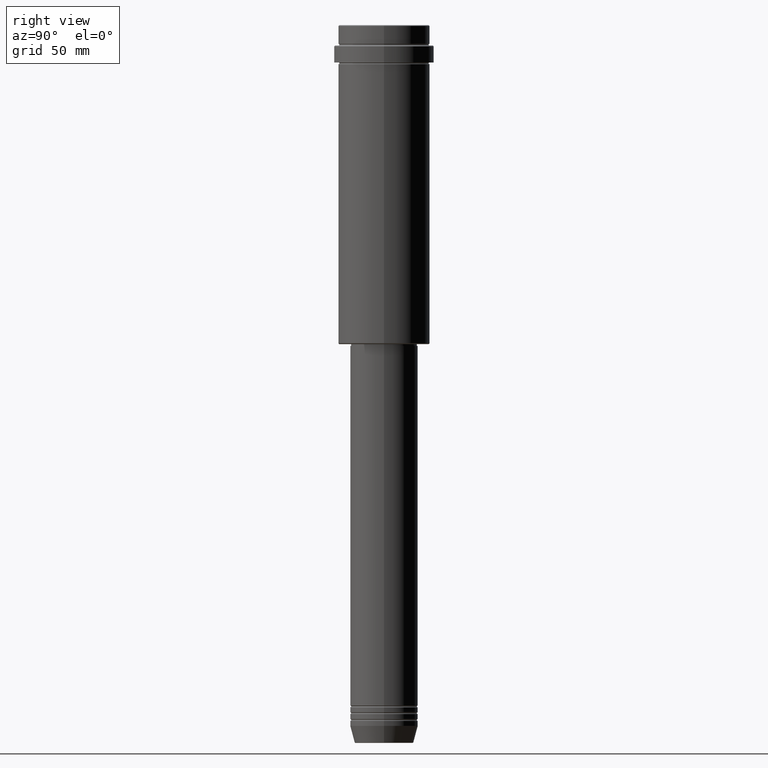
[diagram: clean part render]
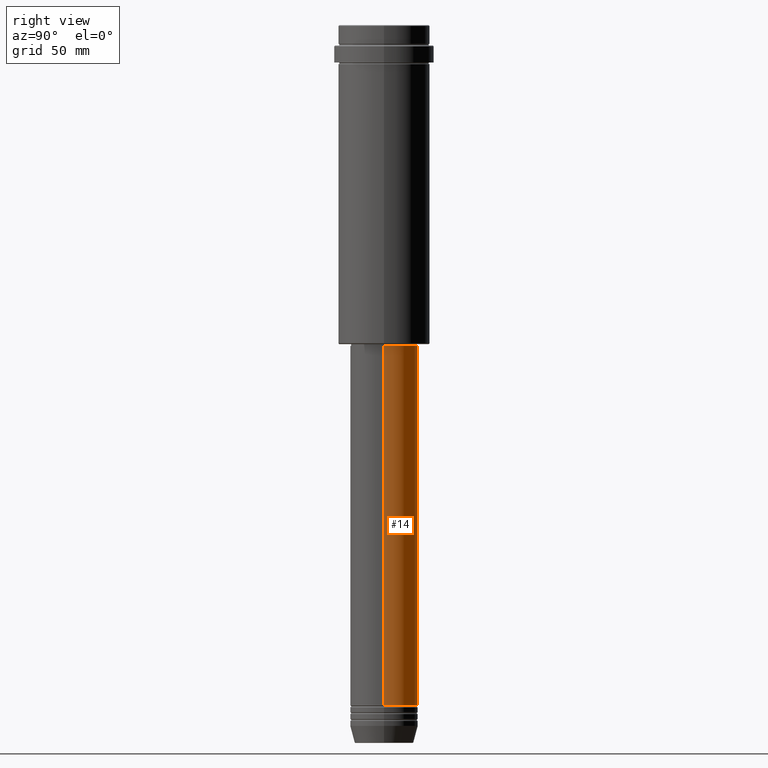
[diagram: same view with one face highlighted and labeled with its STEP entity id]
A machine part, right view. The second image highlights one B-rep face of the part: STEP entity #14.
In plain terms, the highlighted cylindrical surface (edge-blend (fillet) strip) has radius 20 mm, axis along (-0, -0, 1).
Its self-contained STEP definition (entity closure, byte-faithful):
#3 = VERTEX_POINT ( 'NONE', #507 ) ;
#14 = ADVANCED_FACE ( 'NONE', ( #283 ), #1277, .T. ) ;
#188 = ORIENTED_EDGE ( 'NONE', *, *, #385, .F. ) ;
#261 = CIRCLE ( 'NONE', #1224, 20.00000000000000000 ) ;
#283 = FACE_OUTER_BOUND ( 'NONE', #773, .T. ) ;
#292 = DIRECTION ( 'NONE',  ( -0.000000000000000000, -0.000000000000000000, 1.000000000000000000 ) ) ;
#325 = DIRECTION ( 'NONE',  ( 1.000000000000000000, 0.000000000000000000, 0.000000000000000000 ) ) ;
#334 = CIRCLE ( 'NONE', #696, 20.00000000000000000 ) ;
#385 = EDGE_CURVE ( 'NONE', #3, #904, #965, .T. ) ;
#419 = VERTEX_POINT ( 'NONE', #1095 ) ;
#445 = CARTESIAN_POINT ( 'NONE',  ( 20.00000000000000000, 0.000000000000000000, -188.9999999999999147 ) ) ;
#507 = CARTESIAN_POINT ( 'NONE',  ( 20.00000000000000000, 0.000000000000000000, -400.9999999999998295 ) ) ;
#567 = CARTESIAN_POINT ( 'NONE',  ( -20.00000000000000000, 2.449293598294706513E-15, 0.000000000000000000 ) ) ;
#618 = DIRECTION ( 'NONE',  ( -0.000000000000000000, -0.000000000000000000, 1.000000000000000000 ) ) ;
#657 = CARTESIAN_POINT ( 'NONE',  ( -20.00000000000000000, 2.449293598294706513E-15, -400.9999999999998295 ) ) ;
#664 = CARTESIAN_POINT ( 'NONE',  ( 0.000000000000000000, 0.000000000000000000, -400.9999999999998295 ) ) ;
#694 = VECTOR ( 'NONE', #777, 1000.000000000000000 ) ;
#696 = AXIS2_PLACEMENT_3D ( 'NONE', #664, #1197, #325 ) ;
#720 = VECTOR ( 'NONE', #914, 1000.000000000000000 ) ;
#750 = EDGE_CURVE ( 'NONE', #904, #419, #261, .T. ) ;
#773 = EDGE_LOOP ( 'NONE', ( #1067, #778, #1117, #188 ) ) ;
#777 = DIRECTION ( 'NONE',  ( -0.000000000000000000, -0.000000000000000000, 1.000000000000000000 ) ) ;
#778 = ORIENTED_EDGE ( 'NONE', *, *, #1415, .T. ) ;
#847 = CARTESIAN_POINT ( 'NONE',  ( 0.000000000000000000, 0.000000000000000000, -188.9999999999999147 ) ) ;
#904 = VERTEX_POINT ( 'NONE', #445 ) ;
#914 = DIRECTION ( 'NONE',  ( -0.000000000000000000, -0.000000000000000000, 1.000000000000000000 ) ) ;
#947 = CARTESIAN_POINT ( 'NONE',  ( 0.000000000000000000, 0.000000000000000000, 0.000000000000000000 ) ) ;
#965 = LINE ( 'NONE', #1179, #694 ) ;
#1067 = ORIENTED_EDGE ( 'NONE', *, *, #1303, .T. ) ;
#1071 = DIRECTION ( 'NONE',  ( 1.000000000000000000, 0.000000000000000000, 0.000000000000000000 ) ) ;
#1095 = CARTESIAN_POINT ( 'NONE',  ( -20.00000000000000000, 2.449293598294706513E-15, -188.9999999999999147 ) ) ;
#1117 = ORIENTED_EDGE ( 'NONE', *, *, #750, .F. ) ;
#1178 = DIRECTION ( 'NONE',  ( 1.000000000000000000, 0.000000000000000000, 0.000000000000000000 ) ) ;
#1179 = CARTESIAN_POINT ( 'NONE',  ( 20.00000000000000000, 0.000000000000000000, 0.000000000000000000 ) ) ;
#1197 = DIRECTION ( 'NONE',  ( -0.000000000000000000, -0.000000000000000000, 1.000000000000000000 ) ) ;
#1224 = AXIS2_PLACEMENT_3D ( 'NONE', #847, #618, #1178 ) ;
#1246 = VERTEX_POINT ( 'NONE', #657 ) ;
#1270 = AXIS2_PLACEMENT_3D ( 'NONE', #947, #292, #1071 ) ;
#1277 = CYLINDRICAL_SURFACE ( 'NONE', #1270, 20.00000000000000000 ) ;
#1303 = EDGE_CURVE ( 'NONE', #3, #1246, #334, .T. ) ;
#1369 = LINE ( 'NONE', #567, #720 ) ;
#1415 = EDGE_CURVE ( 'NONE', #1246, #419, #1369, .T. ) ;